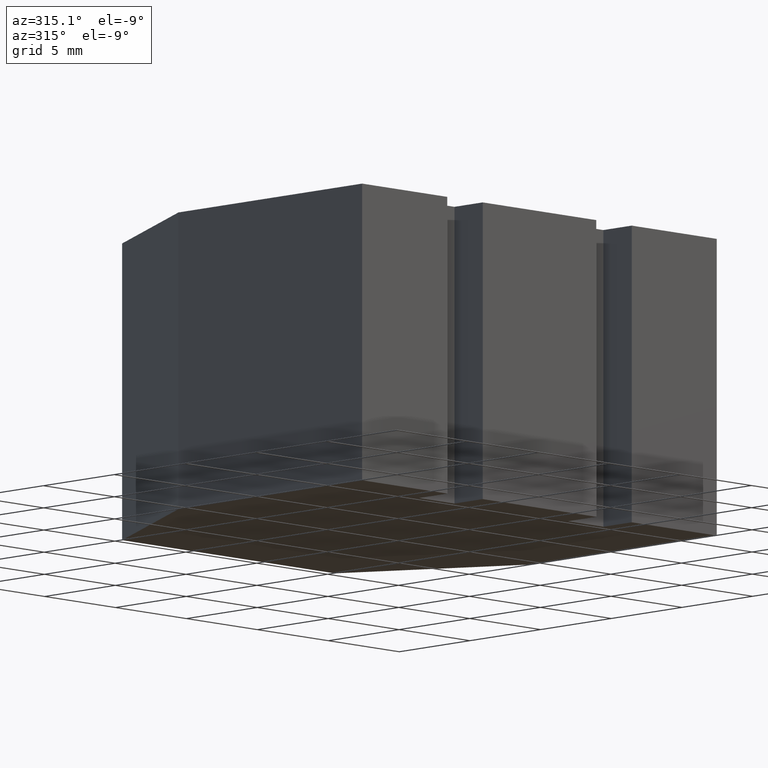
[diagram: clean part render]
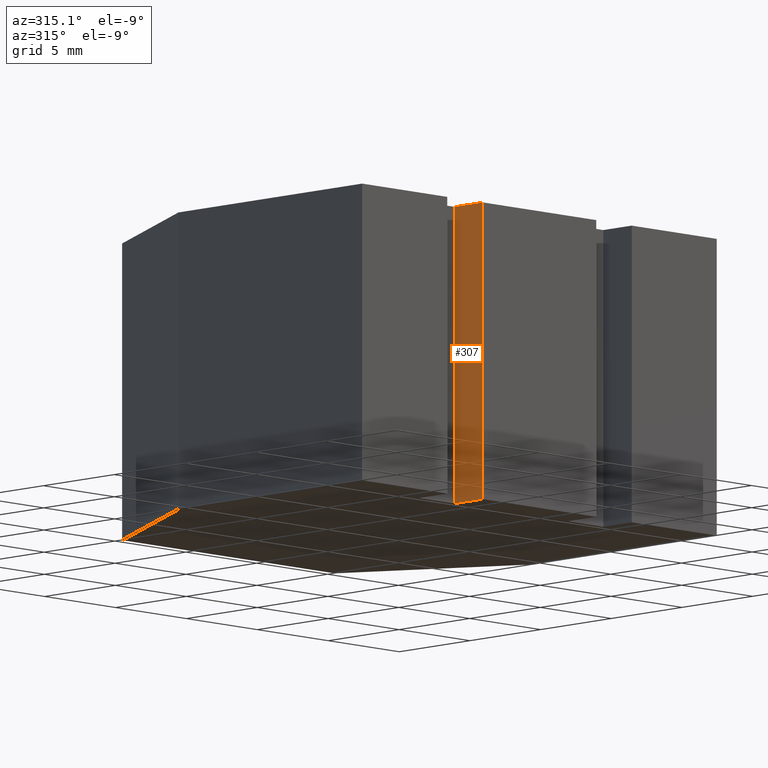
[diagram: same view with one face highlighted and labeled with its STEP entity id]
A machine part, auxiliary view. The second image highlights one B-rep face of the part: STEP entity #307.
In plain terms, the highlighted planar face has unit normal (-1, 0, 0).
Its self-contained STEP definition (entity closure, byte-faithful):
#21=FACE_OUTER_BOUND('',#37,.T.);
#37=EDGE_LOOP('',(#232,#233,#234,#235));
#54=LINE('',#449,#96);
#70=LINE('',#480,#112);
#71=LINE('',#483,#113);
#72=LINE('',#484,#114);
#96=VECTOR('',#367,10.);
#112=VECTOR('',#391,10.);
#113=VECTOR('',#394,10.);
#114=VECTOR('',#395,10.);
#138=VERTEX_POINT('',#446);
#139=VERTEX_POINT('',#448);
#150=VERTEX_POINT('',#478);
#151=VERTEX_POINT('',#482);
#166=EDGE_CURVE('',#139,#138,#54,.T.);
#182=EDGE_CURVE('',#150,#138,#70,.T.);
#183=EDGE_CURVE('',#150,#151,#71,.T.);
#184=EDGE_CURVE('',#151,#139,#72,.T.);
#232=ORIENTED_EDGE('',*,*,#183,.T.);
#233=ORIENTED_EDGE('',*,*,#184,.T.);
#234=ORIENTED_EDGE('',*,*,#166,.T.);
#235=ORIENTED_EDGE('',*,*,#182,.F.);
#291=PLANE('',#346);
#307=ADVANCED_FACE('',(#21),#291,.T.);
#346=AXIS2_PLACEMENT_3D('',#481,#392,#393);
#367=DIRECTION('',(0.,-1.,0.));
#391=DIRECTION('',(0.,0.,-1.));
#392=DIRECTION('center_axis',(-1.,0.,0.));
#393=DIRECTION('ref_axis',(0.,0.,1.));
#394=DIRECTION('',(0.,1.,0.));
#395=DIRECTION('',(0.,0.,-1.));
#446=CARTESIAN_POINT('',(-4.,0.,-7.5));
#448=CARTESIAN_POINT('',(-4.,2.,-7.5));
#449=CARTESIAN_POINT('',(-4.,0.,-7.5));
#478=CARTESIAN_POINT('',(-4.,0.,7.5));
#480=CARTESIAN_POINT('',(-4.,0.,0.));
#481=CARTESIAN_POINT('Origin',(-4.,0.,0.));
#482=CARTESIAN_POINT('',(-4.,2.,7.5));
#483=CARTESIAN_POINT('',(-4.,0.,7.5));
#484=CARTESIAN_POINT('',(-4.,2.,0.));